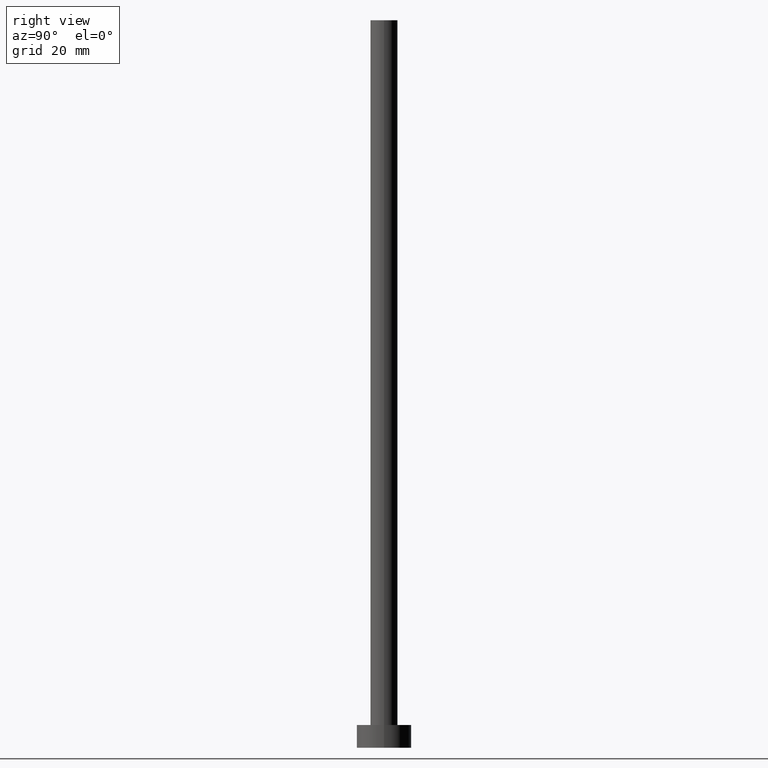
[diagram: clean part render]
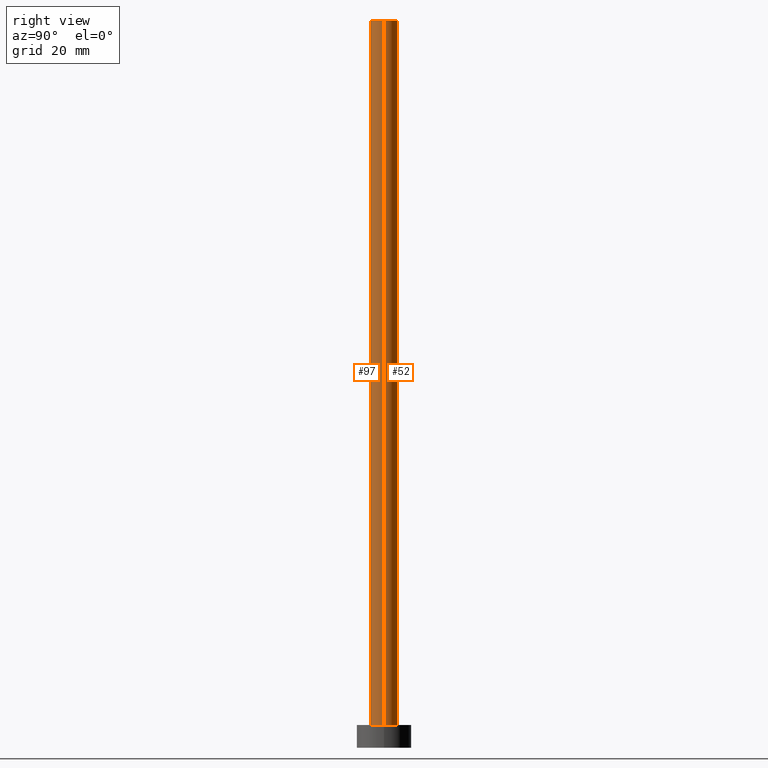
[diagram: same view with one multi-face feature highlighted, each face labeled with its STEP entity id]
A machine part, right view. The highlighted faces form ONE feature: a constant-radius fillet chain: 2 tangent blend faces with common blend radius 3 mm. The faces share edges in the B-rep.
Their STEP definitions:
[1] entity #97 (Cylinder):
#4 = FACE_OUTER_BOUND ( 'NONE', #92, .T. ) ;
#5 = CARTESIAN_POINT ( 'NONE',  ( 3.000000000000000444, 3.673940397442060361E-16, 160.0000000000000000 ) ) ;
#20 = CARTESIAN_POINT ( 'NONE',  ( -3.000000000000000444, 0.000000000000000000, 5.000000000000000000 ) ) ;
#23 = LINE ( 'NONE', #177, #244 ) ;
#27 = LINE ( 'NONE', #166, #187 ) ;
#36 = ORIENTED_EDGE ( 'NONE', *, *, #240, .T. ) ;
#37 = CARTESIAN_POINT ( 'NONE',  ( -3.000000000000000444, 0.000000000000000000, 160.0000000000000000 ) ) ;
#39 = DIRECTION ( 'NONE',  ( -1.000000000000000000, 0.000000000000000000, 0.000000000000000000 ) ) ;
#41 = DIRECTION ( 'NONE',  ( -0.000000000000000000, -0.000000000000000000, -1.000000000000000000 ) ) ;
#48 = DIRECTION ( 'NONE',  ( -0.000000000000000000, -0.000000000000000000, -1.000000000000000000 ) ) ;
#75 = VERTEX_POINT ( 'NONE', #157 ) ;
#84 = CIRCLE ( 'NONE', #151, 3.000000000000000444 ) ;
#85 = CYLINDRICAL_SURFACE ( 'NONE', #243, 3.000000000000000444 ) ;
#92 = EDGE_LOOP ( 'NONE', ( #134, #138, #173, #36 ) ) ;
#97 = ADVANCED_FACE ( 'NONE', ( #4 ), #85, .T. ) ;
#103 = DIRECTION ( 'NONE',  ( 0.000000000000000000, 0.000000000000000000, 1.000000000000000000 ) ) ;
#105 = AXIS2_PLACEMENT_3D ( 'NONE', #129, #147, #251 ) ;
#114 = VERTEX_POINT ( 'NONE', #37 ) ;
#117 = CIRCLE ( 'NONE', #105, 3.000000000000000444 ) ;
#129 = CARTESIAN_POINT ( 'NONE',  ( 0.000000000000000000, 0.000000000000000000, 5.000000000000000000 ) ) ;
#134 = ORIENTED_EDGE ( 'NONE', *, *, #135, .F. ) ;
#135 = EDGE_CURVE ( 'NONE', #171, #75, #23, .T. ) ;
#138 = ORIENTED_EDGE ( 'NONE', *, *, #184, .F. ) ;
#147 = DIRECTION ( 'NONE',  ( 0.000000000000000000, 0.000000000000000000, 1.000000000000000000 ) ) ;
#151 = AXIS2_PLACEMENT_3D ( 'NONE', #158, #103, #198 ) ;
#157 = CARTESIAN_POINT ( 'NONE',  ( 3.000000000000000444, 3.673940397442060361E-16, 5.000000000000000000 ) ) ;
#158 = CARTESIAN_POINT ( 'NONE',  ( 0.000000000000000000, 0.000000000000000000, 160.0000000000000000 ) ) ;
#166 = CARTESIAN_POINT ( 'NONE',  ( -3.000000000000000444, 0.000000000000000000, 160.0000000000000000 ) ) ;
#171 = VERTEX_POINT ( 'NONE', #5 ) ;
#173 = ORIENTED_EDGE ( 'NONE', *, *, #220, .T. ) ;
#177 = CARTESIAN_POINT ( 'NONE',  ( 3.000000000000000444, 3.673940397442060361E-16, 160.0000000000000000 ) ) ;
#184 = EDGE_CURVE ( 'NONE', #114, #171, #84, .T. ) ;
#187 = VECTOR ( 'NONE', #48, 1000.000000000000000 ) ;
#198 = DIRECTION ( 'NONE',  ( 1.000000000000000000, 0.000000000000000000, 0.000000000000000000 ) ) ;
#209 = VERTEX_POINT ( 'NONE', #20 ) ;
#218 = CARTESIAN_POINT ( 'NONE',  ( 0.000000000000000000, 0.000000000000000000, 160.0000000000000000 ) ) ;
#220 = EDGE_CURVE ( 'NONE', #114, #209, #27, .T. ) ;
#221 = DIRECTION ( 'NONE',  ( -0.000000000000000000, -0.000000000000000000, -1.000000000000000000 ) ) ;
#240 = EDGE_CURVE ( 'NONE', #209, #75, #117, .T. ) ;
#243 = AXIS2_PLACEMENT_3D ( 'NONE', #218, #221, #39 ) ;
#244 = VECTOR ( 'NONE', #41, 1000.000000000000000 ) ;
#251 = DIRECTION ( 'NONE',  ( 1.000000000000000000, 0.000000000000000000, 0.000000000000000000 ) ) ;
[2] entity #52 (Cylinder):
#5 = CARTESIAN_POINT ( 'NONE',  ( 3.000000000000000444, 3.673940397442060361E-16, 160.0000000000000000 ) ) ;
#10 = EDGE_CURVE ( 'NONE', #171, #114, #74, .T. ) ;
#17 = DIRECTION ( 'NONE',  ( 0.000000000000000000, 0.000000000000000000, 1.000000000000000000 ) ) ;
#20 = CARTESIAN_POINT ( 'NONE',  ( -3.000000000000000444, 0.000000000000000000, 5.000000000000000000 ) ) ;
#23 = LINE ( 'NONE', #177, #244 ) ;
#27 = LINE ( 'NONE', #166, #187 ) ;
#37 = CARTESIAN_POINT ( 'NONE',  ( -3.000000000000000444, 0.000000000000000000, 160.0000000000000000 ) ) ;
#41 = DIRECTION ( 'NONE',  ( -0.000000000000000000, -0.000000000000000000, -1.000000000000000000 ) ) ;
#43 = DIRECTION ( 'NONE',  ( -0.000000000000000000, -0.000000000000000000, -1.000000000000000000 ) ) ;
#46 = AXIS2_PLACEMENT_3D ( 'NONE', #142, #99, #102 ) ;
#48 = DIRECTION ( 'NONE',  ( -0.000000000000000000, -0.000000000000000000, -1.000000000000000000 ) ) ;
#52 = ADVANCED_FACE ( 'NONE', ( #219 ), #215, .T. ) ;
#74 = CIRCLE ( 'NONE', #148, 3.000000000000000444 ) ;
#75 = VERTEX_POINT ( 'NONE', #157 ) ;
#94 = AXIS2_PLACEMENT_3D ( 'NONE', #120, #43, #162 ) ;
#99 = DIRECTION ( 'NONE',  ( 0.000000000000000000, 0.000000000000000000, 1.000000000000000000 ) ) ;
#102 = DIRECTION ( 'NONE',  ( 1.000000000000000000, 0.000000000000000000, 0.000000000000000000 ) ) ;
#114 = VERTEX_POINT ( 'NONE', #37 ) ;
#120 = CARTESIAN_POINT ( 'NONE',  ( 0.000000000000000000, 0.000000000000000000, 160.0000000000000000 ) ) ;
#135 = EDGE_CURVE ( 'NONE', #171, #75, #23, .T. ) ;
#142 = CARTESIAN_POINT ( 'NONE',  ( 0.000000000000000000, 0.000000000000000000, 5.000000000000000000 ) ) ;
#148 = AXIS2_PLACEMENT_3D ( 'NONE', #196, #17, #150 ) ;
#150 = DIRECTION ( 'NONE',  ( 1.000000000000000000, 0.000000000000000000, 0.000000000000000000 ) ) ;
#155 = ORIENTED_EDGE ( 'NONE', *, *, #135, .T. ) ;
#156 = ORIENTED_EDGE ( 'NONE', *, *, #10, .F. ) ;
#157 = CARTESIAN_POINT ( 'NONE',  ( 3.000000000000000444, 3.673940397442060361E-16, 5.000000000000000000 ) ) ;
#162 = DIRECTION ( 'NONE',  ( -1.000000000000000000, 0.000000000000000000, 0.000000000000000000 ) ) ;
#163 = EDGE_CURVE ( 'NONE', #75, #209, #217, .T. ) ;
#166 = CARTESIAN_POINT ( 'NONE',  ( -3.000000000000000444, 0.000000000000000000, 160.0000000000000000 ) ) ;
#171 = VERTEX_POINT ( 'NONE', #5 ) ;
#172 = EDGE_LOOP ( 'NONE', ( #156, #155, #232, #233 ) ) ;
#177 = CARTESIAN_POINT ( 'NONE',  ( 3.000000000000000444, 3.673940397442060361E-16, 160.0000000000000000 ) ) ;
#187 = VECTOR ( 'NONE', #48, 1000.000000000000000 ) ;
#196 = CARTESIAN_POINT ( 'NONE',  ( 0.000000000000000000, 0.000000000000000000, 160.0000000000000000 ) ) ;
#209 = VERTEX_POINT ( 'NONE', #20 ) ;
#215 = CYLINDRICAL_SURFACE ( 'NONE', #94, 3.000000000000000444 ) ;
#217 = CIRCLE ( 'NONE', #46, 3.000000000000000444 ) ;
#219 = FACE_OUTER_BOUND ( 'NONE', #172, .T. ) ;
#220 = EDGE_CURVE ( 'NONE', #114, #209, #27, .T. ) ;
#232 = ORIENTED_EDGE ( 'NONE', *, *, #163, .T. ) ;
#233 = ORIENTED_EDGE ( 'NONE', *, *, #220, .F. ) ;
#244 = VECTOR ( 'NONE', #41, 1000.000000000000000 ) ;